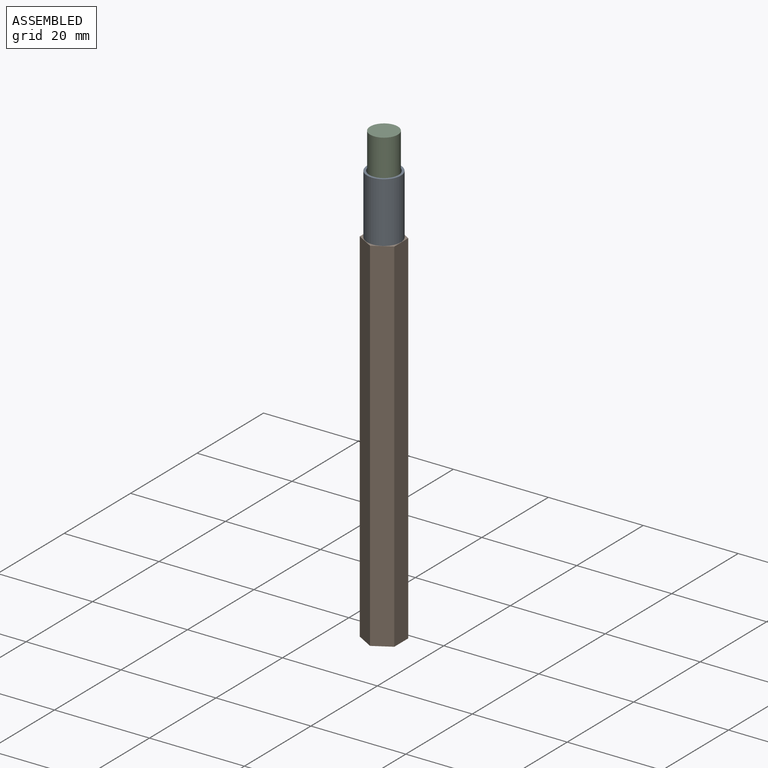
[diagram: assembled view]
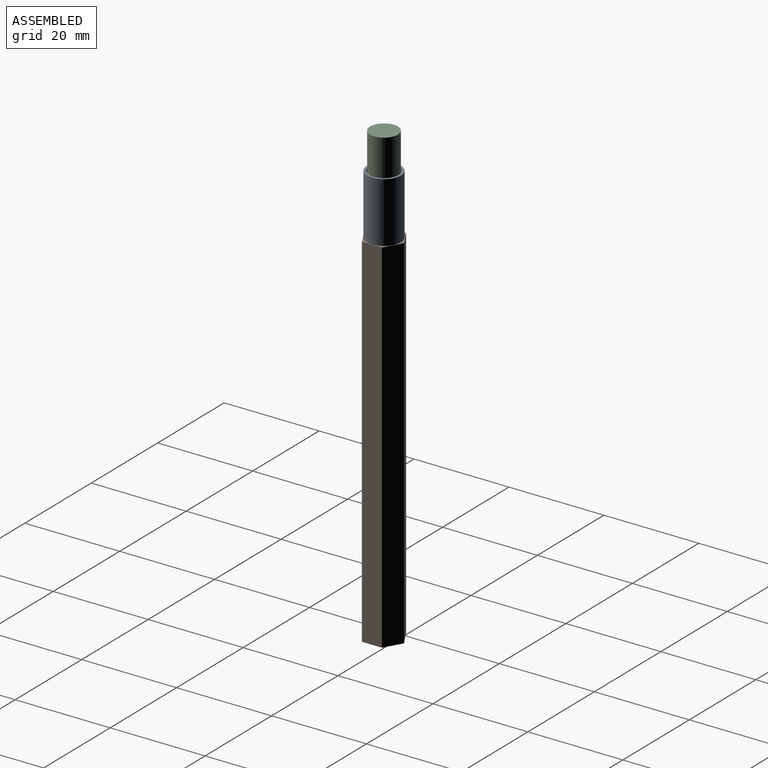
[diagram: assembled view, second angle]
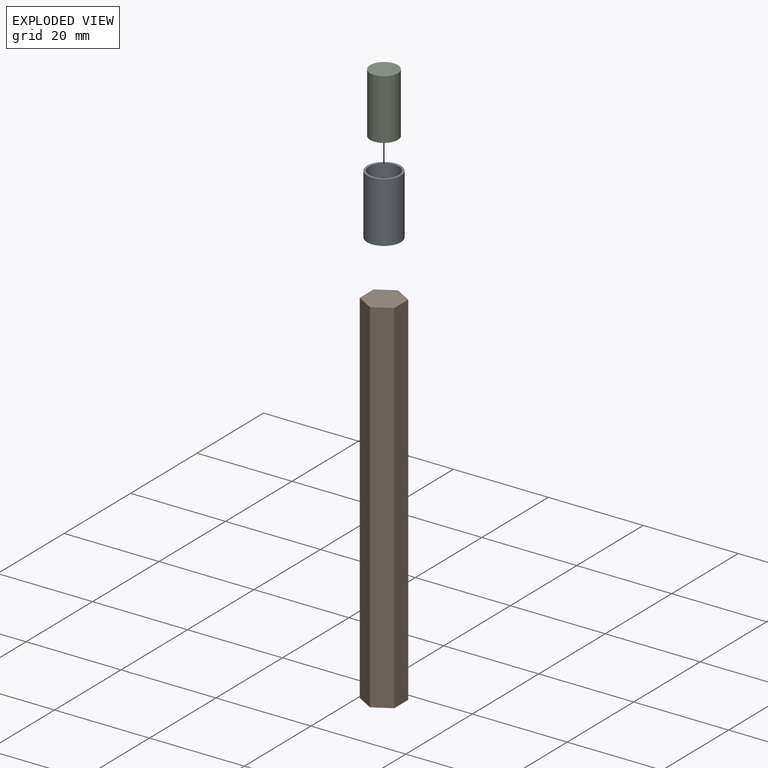
[diagram: exploded view]
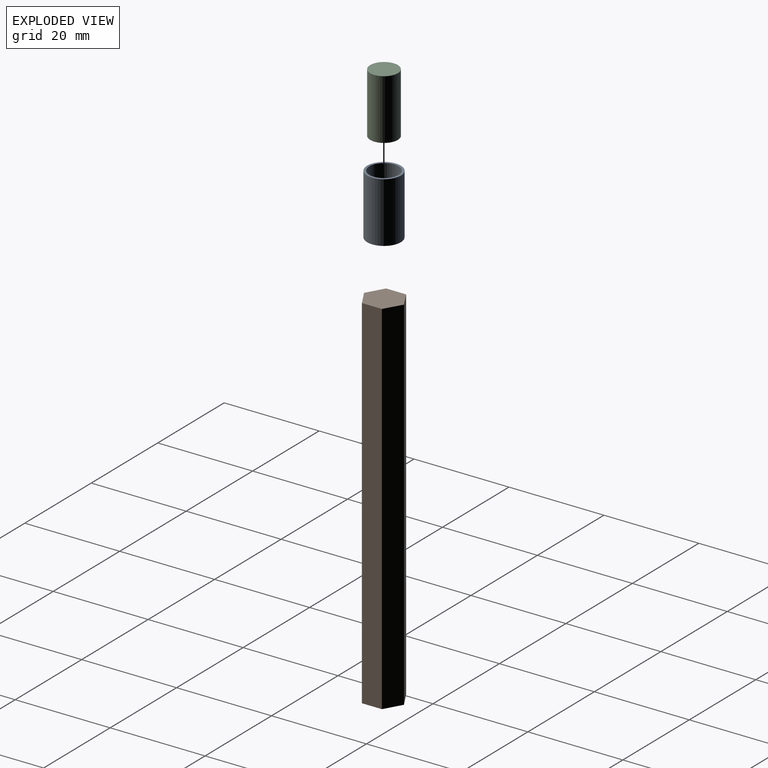
[diagram: exploded view, second angle]
ASSEMBLY  parts=3 mates=2
PART A: 5 faces, bbox 7.1x7.1x12.7 mm
  f0: cylinder r=3.56mm len=12.7mm, axis (0,0,-1), area 283.8mm2, adj f1,f2
  f1: plane 7.11x7.11mm, normal (0,0,1), area 9.8mm2, adj f0,f3
  f2: plane 7.11x7.11mm, normal (0,0,-1), area 39.7mm2, adj f0
  f3: cylinder r=3.09mm len=6.17mm, axis (0,0,1), area 98.5mm2, adj f1,f4
  f4: plane 6.17x6.17mm, normal (0,0,1), area 29.9mm2, adj f3
PART B: 8 faces, bbox 7.3x8.4x76.2 mm
  f0: plane 76.2x3.64mm, normal (0.5,0.87,0), area 320.3mm2, adj f1,f5,f6,f7
  f1: plane 76.2x3.64mm, normal (-0.5,0.87,0), area 320.3mm2, adj f0,f2,f6,f7
  f2: plane 76.2x4.2mm, normal (-1,0,0), area 320.3mm2, adj f1,f3,f6,f7
  f3: plane 76.2x3.64mm, normal (-0.5,-0.87,0), area 320.3mm2, adj f2,f4,f6,f7
  f4: plane 76.2x3.64mm, normal (0.5,-0.87,0), area 320.3mm2, adj f3,f5,f6,f7
  f5: plane 76.2x4.2mm, normal (1,0,0), area 320.3mm2, adj f0,f4,f6,f7
  f6: plane 8.41x7.28mm, normal (0,0,1), area 45.9mm2, adj f0,f1,f2,f3,f4,f5
  f7: plane 8.41x7.28mm, normal (0,0,-1), area 45.9mm2, adj f0,f1,f2,f3,f4,f5
PART C: 3 faces, bbox 5.8x5.8x12.7 mm
  f0: cylinder r=2.92mm len=12.7mm, axis (0,0,-1), area 233.1mm2, adj f1,f2
  f1: plane 5.84x5.84mm, normal (0,0,1), area 26.8mm2, adj f0
  f2: plane 5.84x5.84mm, normal (0,0,-1), area 26.8mm2, adj f0
PLACE A at identity
PLACE B t=(59.85,-11.22,-76.2)mm
PLACE C rot(axis=(0.71,-0.71,0),180deg) t=(48.66,-8.6,20.32)mm
MATE fastened C.f0 <-> A.f0  axis (0,0,-1) through (25.79,33.75,7.62)mm
MATE fastened B.f6 <-> A.f0  axis (0,0,1) through (25.79,33.75,0)mm
